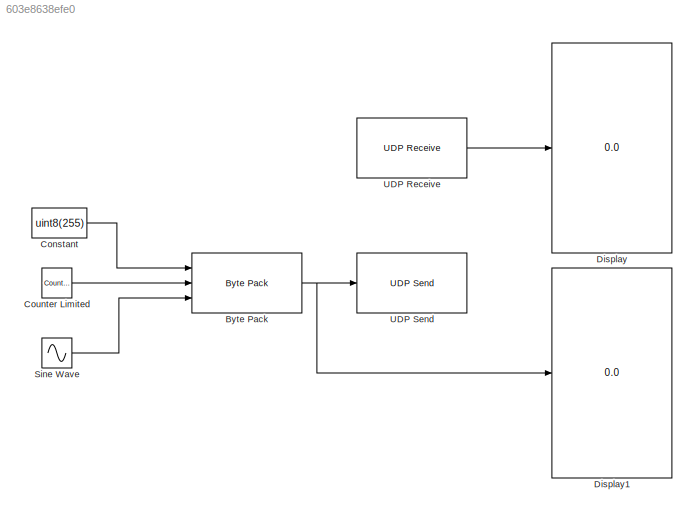
MODEL slx_603e8638efe0
KIND model
CONFIG AbsTol = auto
CONFIG FixedStep = 1
CONFIG MaxStep = auto
CONFIG MinStep = auto
CONFIG RelTol = 1e-3
CONFIG SampleTimeConstraint = Unconstrained
CONFIG Solver = FixedStepDiscrete
CONFIG SolverMode = Auto
CONFIG SolverName = FixedStepDiscrete
CONFIG StartTime = 0.0
CONFIG StopTime = inf
BLOCK [Reference] Byte Pack  REF=etargetslib/Byte Pack
  Ports = [3, 1]
  SourceBlock = etargetslib/Byte Pack
  SourceType = Byte pack
BLOCK [Constant] Constant
  Value = uint8(255)
BLOCK [Reference] Counter Limited  REF=simulink/Sources/Counter
Limited
  Ports = [0, 1]
  SourceBlock = simulink/Sources/Counter\nLimited
  SourceType = Counter Limited
BLOCK [Display] Display
  Decimation = 1
  Ports = [1]
BLOCK [Display] Display1
  Decimation = 1
  Ports = [1]
BLOCK [Sin] Sine Wave
  Ports = [0, 1]
  SampleTime = 1
  SineType = Sample based
BLOCK [Reference] UDP Receive  REF=dspnetwork/UDP Receive
  Ports = [0, 1]
  SourceBlock = dspnetwork/UDP Receive
  SourceType = UDP Receive
BLOCK [Reference] UDP Send  REF=dspnetwork/UDP Send
  Ports = [1]
  SourceBlock = dspnetwork/UDP Send
  SourceType = UDP Send
NET Byte Pack:1 -> Display1:1, UDP Send:1
LINE Constant:1 -> Byte Pack:1
LINE Counter Limited:1 -> Byte Pack:2
LINE Sine Wave:1 -> Byte Pack:3
LINE UDP Receive:1 -> Display:1
note: NET lines group one-source signal fan-out (src -> all destinations, sorted); 1:1 wires keep LINE
